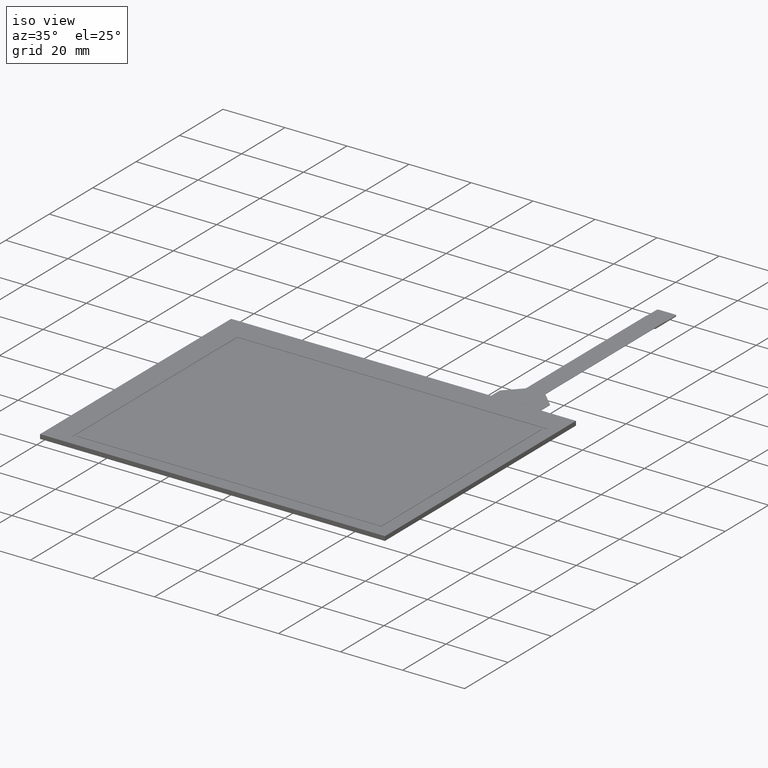
[diagram: clean part render]
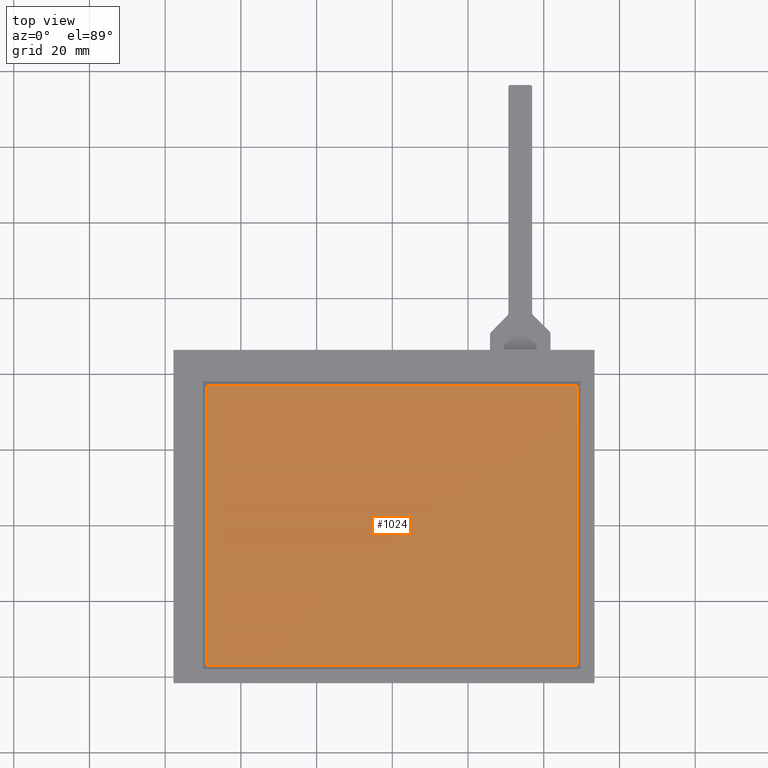
[diagram: tour spotlight — one face highlighted and labeled with its STEP entity id]
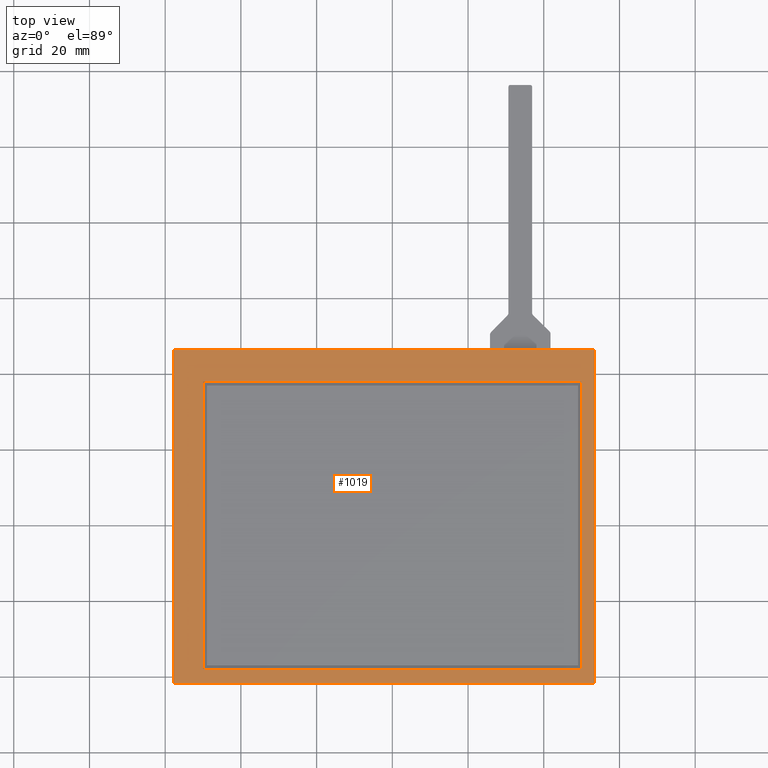
[diagram: tour spotlight — one face highlighted and labeled with its STEP entity id]
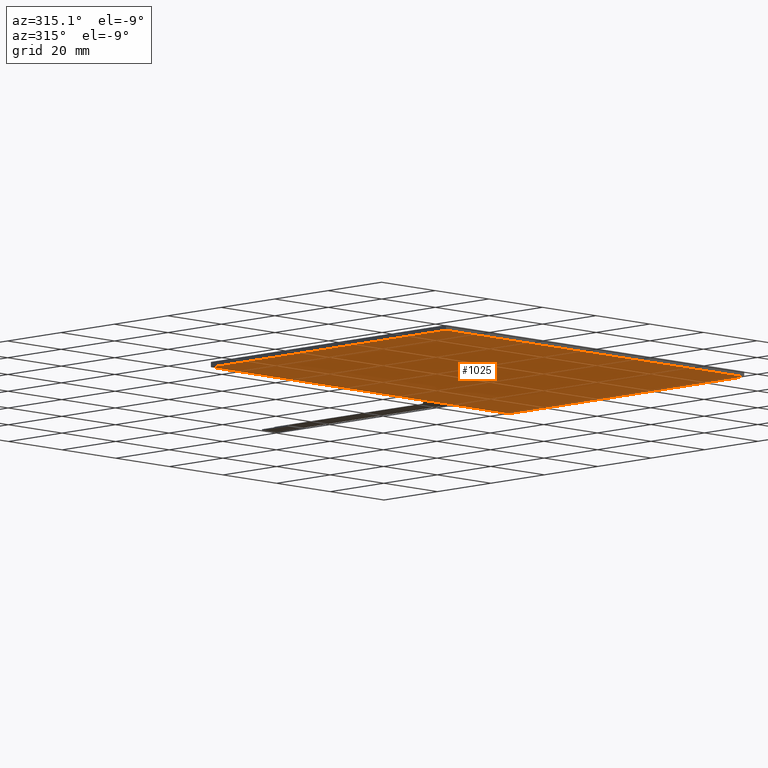
[diagram: tour spotlight — one face highlighted and labeled with its STEP entity id]
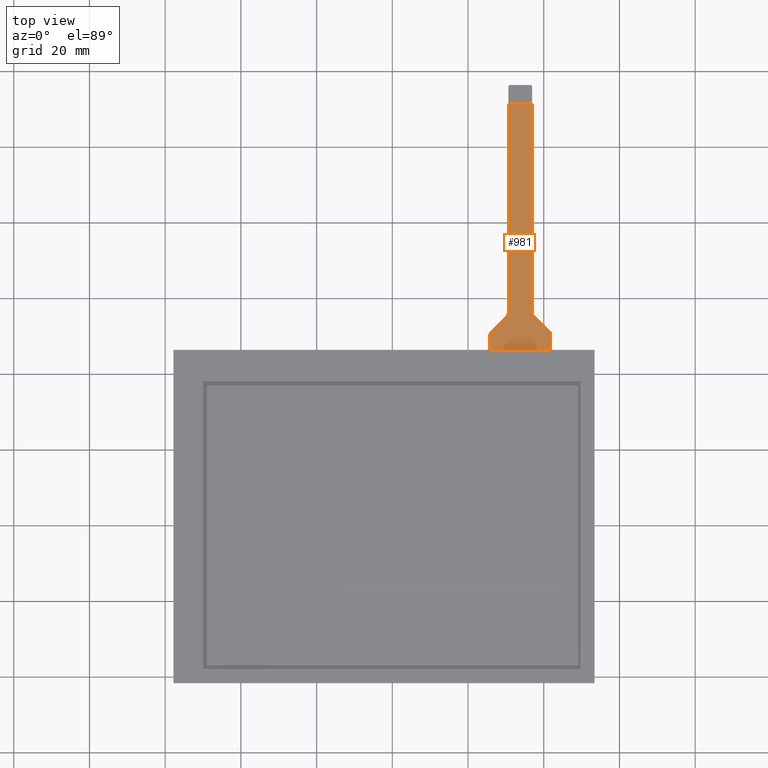
[diagram: tour spotlight — one face highlighted and labeled with its STEP entity id]
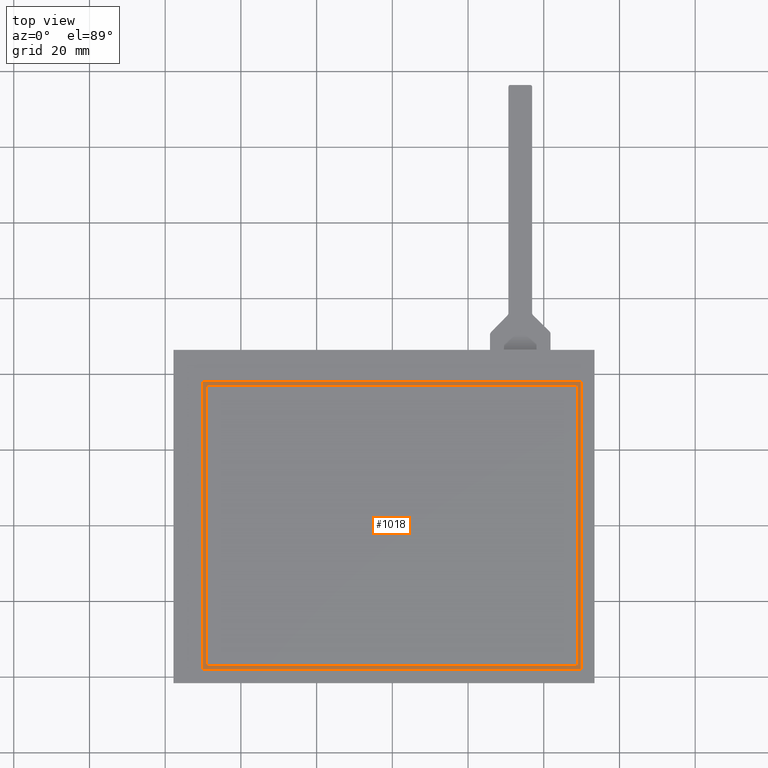
[diagram: tour spotlight — one face highlighted and labeled with its STEP entity id]
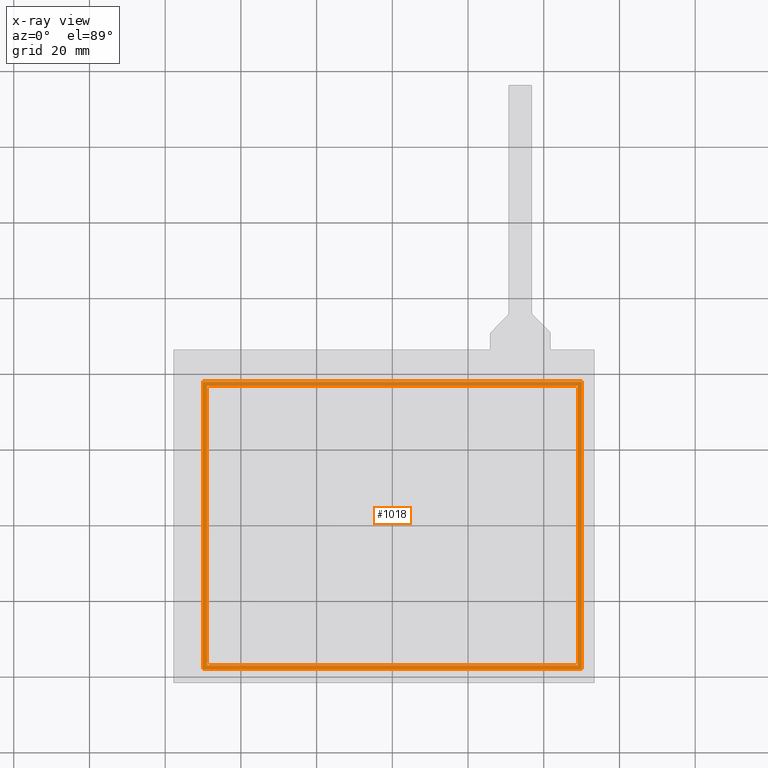
[diagram: x-ray of the same camera — body ghosted, this tour face saturated]
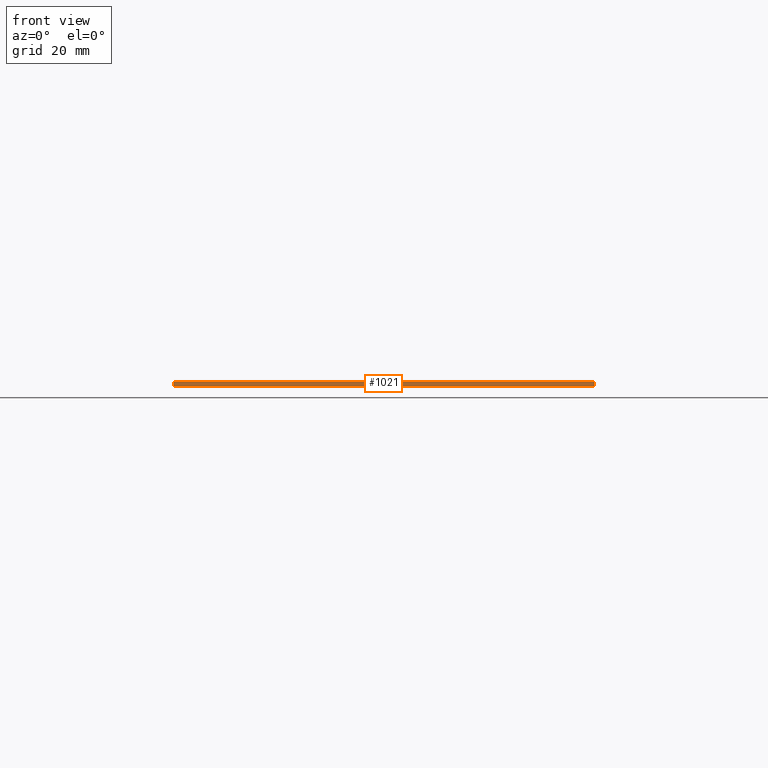
[diagram: tour spotlight — one face highlighted and labeled with its STEP entity id]
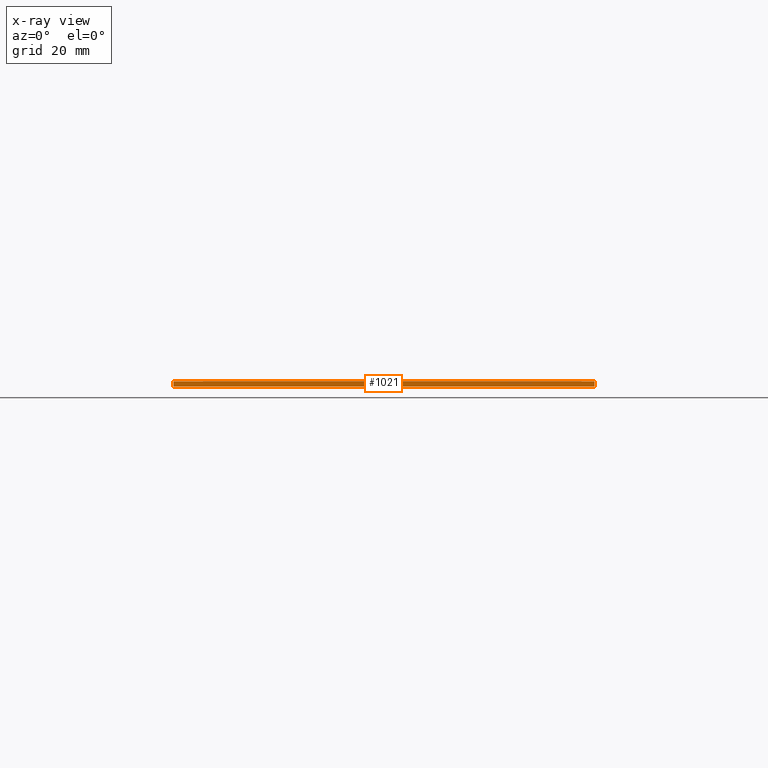
[diagram: x-ray of the same camera — body ghosted, this tour face saturated]
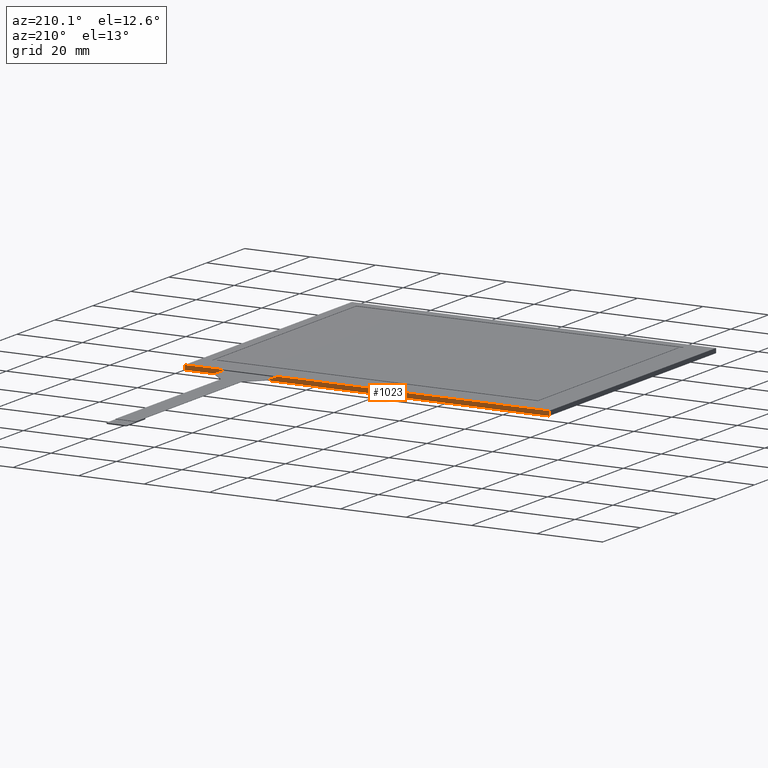
[diagram: tour spotlight — one face highlighted and labeled with its STEP entity id]
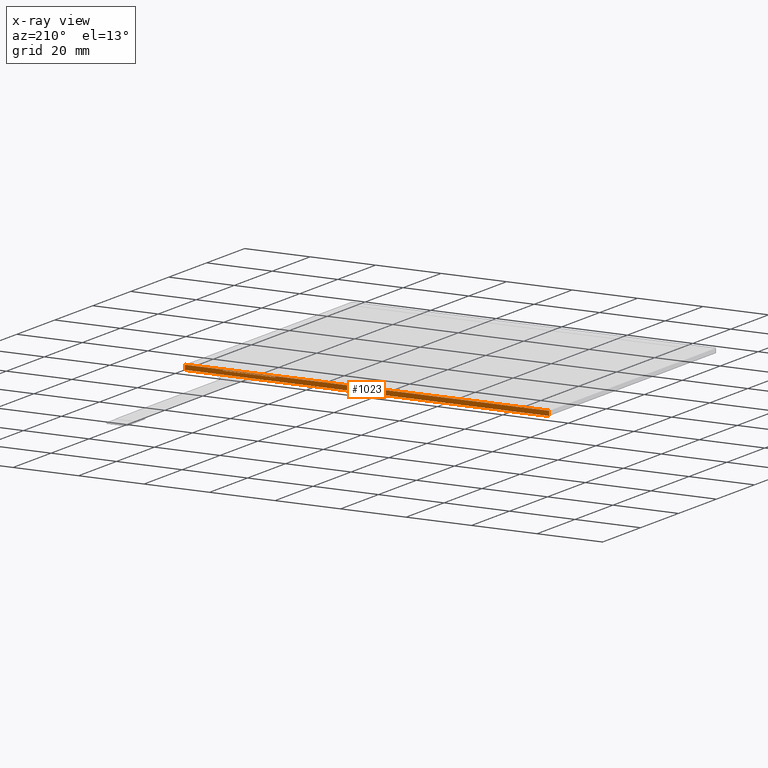
[diagram: x-ray of the same camera — body ghosted, this tour face saturated]
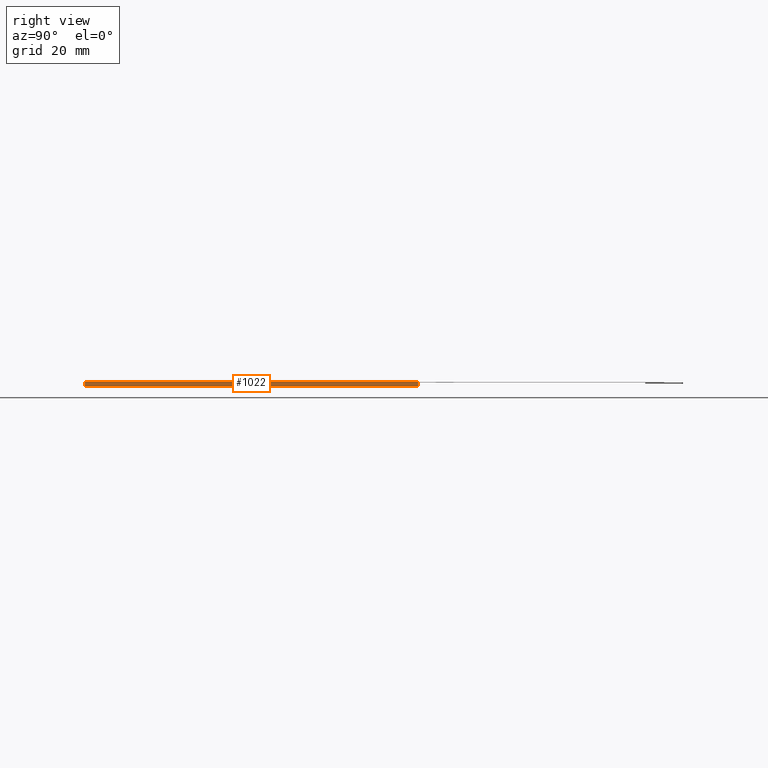
[diagram: tour spotlight — one face highlighted and labeled with its STEP entity id]
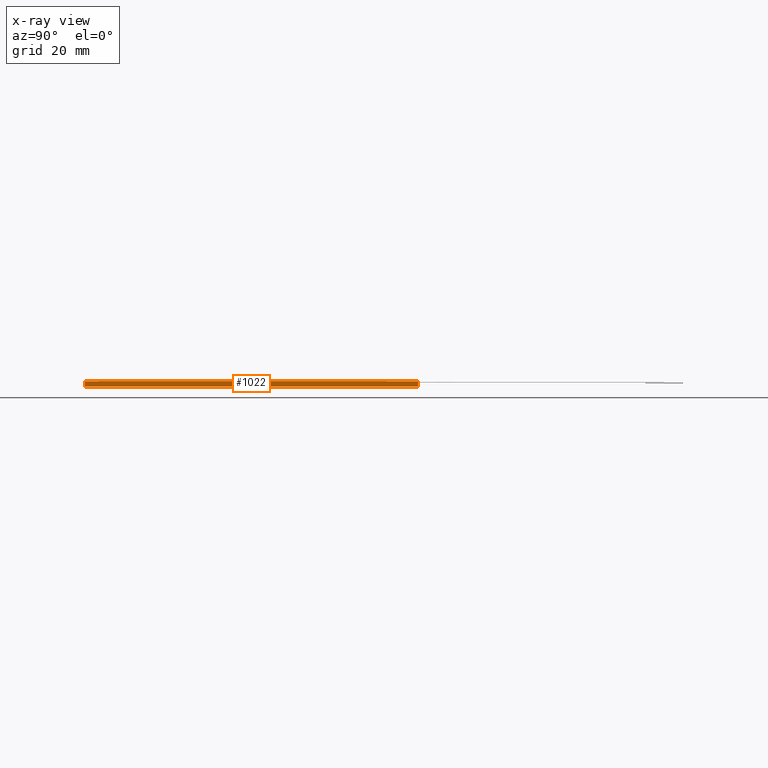
[diagram: x-ray of the same camera — body ghosted, this tour face saturated]
A machine part: a face-by-face anatomy tour. The part has 51 B-rep faces; the first image is the clean iso view, then the 8 largest visible faces are spotlighted one at a time (largest first), each with its STEP entity span.

Face 1 — top view, entity #1024. In plain terms, the highlighted planar face has unit normal (0, 0, 1).
Definition (entity closure, byte-faithful):
#92=PLANE('',#1107);
#143=FACE_OUTER_BOUND('',#197,.T.);
#197=EDGE_LOOP('',(#961,#962,#963,#964));
#289=LINE('',#1572,#415);
#293=LINE('',#1580,#419);
#296=LINE('',#1586,#422);
#299=LINE('',#1591,#425);
#415=VECTOR('',#1297,10.);
#419=VECTOR('',#1303,10.);
#422=VECTOR('',#1308,10.);
#425=VECTOR('',#1313,10.);
#531=VERTEX_POINT('',#1570);
#532=VERTEX_POINT('',#1571);
#535=VERTEX_POINT('',#1579);
#537=VERTEX_POINT('',#1585);
#657=EDGE_CURVE('',#531,#532,#289,.T.);
#661=EDGE_CURVE('',#535,#531,#293,.T.);
#664=EDGE_CURVE('',#537,#535,#296,.T.);
#667=EDGE_CURVE('',#532,#537,#299,.T.);
#961=ORIENTED_EDGE('',*,*,#657,.T.);
#962=ORIENTED_EDGE('',*,*,#667,.T.);
#963=ORIENTED_EDGE('',*,*,#664,.T.);
#964=ORIENTED_EDGE('',*,*,#661,.T.);
#1024=ADVANCED_FACE('',(#143),#92,.T.);
#1107=AXIS2_PLACEMENT_3D('',#1643,#1359,#1360);
#1297=DIRECTION('',(1.,9.06304509898087E-17,0.));
#1303=DIRECTION('',(3.60072332310862E-16,-1.,0.));
#1308=DIRECTION('',(-1.,-6.34413156928661E-16,0.));
#1313=DIRECTION('',(-4.80096443081149E-16,1.,0.));
#1359=DIRECTION('center_axis',(0.,0.,1.));
#1360=DIRECTION('ref_axis',(1.,0.,0.));
#1570=CARTESIAN_POINT('',(-49.,-37.,0.));
#1571=CARTESIAN_POINT('',(49.,-37.,0.));
#1572=CARTESIAN_POINT('',(-25.6,-37.,0.));
#1579=CARTESIAN_POINT('',(-49.,37.,0.));
#1580=CARTESIAN_POINT('',(-49.,19.7,0.));
#1585=CARTESIAN_POINT('',(49.,37.,0.));
#1586=CARTESIAN_POINT('',(23.4,37.,0.));
#1591=CARTESIAN_POINT('',(49.,-17.3,0.));
#1643=CARTESIAN_POINT('Origin',(-2.19999999999997,2.40000000000003,0.));

Face 2 — top view, entity #1019. In plain terms, the highlighted planar face has unit normal (0, 0, 1).
Definition (entity closure, byte-faithful):
#47=FACE_BOUND('',#191,.T.);
#87=PLANE('',#1102);
#138=FACE_OUTER_BOUND('',#190,.T.);
#190=EDGE_LOOP('',(#933,#934,#935,#936));
#191=EDGE_LOOP('',(#937,#938,#939,#940));
#301=LINE('',#1596,#427);
#305=LINE('',#1604,#431);
#308=LINE('',#1610,#434);
#311=LINE('',#1615,#437);
#313=LINE('',#1621,#439);
#314=LINE('',#1623,#440);
#315=LINE('',#1625,#441);
#316=LINE('',#1626,#442);
#427=VECTOR('',#1317,10.);
#431=VECTOR('',#1323,10.);
#434=VECTOR('',#1328,10.);
#437=VECTOR('',#1333,10.);
#439=VECTOR('',#1339,10.);
#440=VECTOR('',#1340,10.);
#441=VECTOR('',#1341,10.);
#442=VECTOR('',#1342,10.);
#539=VERTEX_POINT('',#1594);
#540=VERTEX_POINT('',#1595);
#543=VERTEX_POINT('',#1603);
#545=VERTEX_POINT('',#1609);
#547=VERTEX_POINT('',#1619);
#548=VERTEX_POINT('',#1620);
#549=VERTEX_POINT('',#1622);
#550=VERTEX_POINT('',#1624);
#669=EDGE_CURVE('',#539,#540,#301,.T.);
#673=EDGE_CURVE('',#543,#539,#305,.T.);
#676=EDGE_CURVE('',#545,#543,#308,.T.);
#679=EDGE_CURVE('',#540,#545,#311,.T.);
#681=EDGE_CURVE('',#547,#548,#313,.T.);
#682=EDGE_CURVE('',#548,#549,#314,.T.);
#683=EDGE_CURVE('',#549,#550,#315,.T.);
#684=EDGE_CURVE('',#550,#547,#316,.T.);
#933=ORIENTED_EDGE('',*,*,#681,.T.);
#934=ORIENTED_EDGE('',*,*,#682,.T.);
#935=ORIENTED_EDGE('',*,*,#683,.T.);
#936=ORIENTED_EDGE('',*,*,#684,.T.);
#937=ORIENTED_EDGE('',*,*,#669,.T.);
#938=ORIENTED_EDGE('',*,*,#679,.T.);
#939=ORIENTED_EDGE('',*,*,#676,.T.);
#940=ORIENTED_EDGE('',*,*,#673,.T.);
#1019=ADVANCED_FACE('',(#138,#47),#87,.T.);
#1102=AXIS2_PLACEMENT_3D('',#1618,#1337,#1338);
#1317=DIRECTION('',(-2.3373116307898E-16,1.,0.));
#1323=DIRECTION('',(-1.,-1.77635683940025E-16,0.));
#1328=DIRECTION('',(1.1686558153949E-16,-1.,0.));
#1333=DIRECTION('',(1.,0.,0.));
#1337=DIRECTION('center_axis',(0.,0.,1.));
#1338=DIRECTION('ref_axis',(1.,0.,0.));
#1339=DIRECTION('',(-1.,0.,0.));
#1340=DIRECTION('',(2.01858731750028E-16,-1.,0.));
#1341=DIRECTION('',(1.,7.98721600449753E-17,0.));
#1342=DIRECTION('',(-1.00929365875014E-16,1.,0.));
#1594=CARTESIAN_POINT('',(-50.,-38.,0.));
#1595=CARTESIAN_POINT('',(-50.,38.,0.));
#1596=CARTESIAN_POINT('',(-50.,-17.8,0.));
#1603=CARTESIAN_POINT('',(50.,-38.,0.));
#1604=CARTESIAN_POINT('',(23.9,-38.,0.));
#1609=CARTESIAN_POINT('',(50.,38.,0.));
#1610=CARTESIAN_POINT('',(50.,20.2,0.));
#1615=CARTESIAN_POINT('',(-26.1,38.,0.));
#1618=CARTESIAN_POINT('Origin',(-2.19999999999997,2.40000000000003,0.));
#1619=CARTESIAN_POINT('',(53.4,46.4,0.));
#1620=CARTESIAN_POINT('',(-57.8,46.4,0.));
#1621=CARTESIAN_POINT('',(53.4,46.4,0.));
#1622=CARTESIAN_POINT('',(-57.8,-41.6,0.));
#1623=CARTESIAN_POINT('',(-57.8,46.4,0.));
#1624=CARTESIAN_POINT('',(53.4,-41.6,0.));
#1625=CARTESIAN_POINT('',(-57.8,-41.6,0.));
#1626=CARTESIAN_POINT('',(53.4,-41.6,0.));

Face 3 — auxiliary view, entity #1025. In plain terms, the highlighted planar face has unit normal (0, 0, -1).
Definition (entity closure, byte-faithful):
#93=PLANE('',#1108);
#144=FACE_OUTER_BOUND('',#198,.T.);
#198=EDGE_LOOP('',(#965,#966,#967,#968));
#318=LINE('',#1631,#444);
#320=LINE('',#1635,#446);
#322=LINE('',#1639,#448);
#324=LINE('',#1642,#450);
#444=VECTOR('',#1346,10.);
#446=VECTOR('',#1350,10.);
#448=VECTOR('',#1354,10.);
#450=VECTOR('',#1358,10.);
#551=VERTEX_POINT('',#1628);
#552=VERTEX_POINT('',#1630);
#553=VERTEX_POINT('',#1634);
#554=VERTEX_POINT('',#1638);
#686=EDGE_CURVE('',#552,#551,#318,.T.);
#688=EDGE_CURVE('',#553,#552,#320,.T.);
#690=EDGE_CURVE('',#554,#553,#322,.T.);
#692=EDGE_CURVE('',#551,#554,#324,.T.);
#965=ORIENTED_EDGE('',*,*,#692,.T.);
#966=ORIENTED_EDGE('',*,*,#690,.T.);
#967=ORIENTED_EDGE('',*,*,#688,.T.);
#968=ORIENTED_EDGE('',*,*,#686,.T.);
#1025=ADVANCED_FACE('',(#144),#93,.T.);
#1108=AXIS2_PLACEMENT_3D('',#1644,#1361,#1362);
#1346=DIRECTION('',(-2.01858731750028E-16,1.,0.));
#1350=DIRECTION('',(-1.,-7.98721600449753E-17,0.));
#1354=DIRECTION('',(1.00929365875014E-16,-1.,0.));
#1358=DIRECTION('',(1.,0.,0.));
#1361=DIRECTION('center_axis',(0.,0.,-1.));
#1362=DIRECTION('ref_axis',(-1.,0.,0.));
#1628=CARTESIAN_POINT('',(-57.8,46.4,-1.4));
#1630=CARTESIAN_POINT('',(-57.8,-41.6,-1.4));
#1631=CARTESIAN_POINT('',(-57.8,46.4,-1.4));
#1634=CARTESIAN_POINT('',(53.4,-41.6,-1.4));
#1635=CARTESIAN_POINT('',(-57.8,-41.6,-1.4));
#1638=CARTESIAN_POINT('',(53.4,46.4,-1.4));
#1639=CARTESIAN_POINT('',(53.4,-41.6,-1.4));
#1642=CARTESIAN_POINT('',(53.4,46.4,-1.4));
#1644=CARTESIAN_POINT('Origin',(-2.19999999999997,2.40000000000004,-1.4));

Face 4 — top view, entity #981. In plain terms, the highlighted planar face has unit normal (0, 0, 1).
Definition (entity closure, byte-faithful):
#52=PLANE('',#1058);
#100=FACE_OUTER_BOUND('',#151,.T.);
#151=EDGE_LOOP('',(#735,#736,#737,#738,#739,#740,#741,#742,#743,#744,#745,
#746));
#226=LINE('',#1434,#352);
#229=LINE('',#1440,#355);
#230=LINE('',#1442,#356);
#231=LINE('',#1444,#357);
#232=LINE('',#1448,#358);
#233=LINE('',#1452,#359);
#234=LINE('',#1454,#360);
#235=LINE('',#1456,#361);
#352=VECTOR('',#1162,10.);
#355=VECTOR('',#1167,10.);
#356=VECTOR('',#1168,10.);
#357=VECTOR('',#1169,10.);
#358=VECTOR('',#1172,10.);
#359=VECTOR('',#1175,10.);
#360=VECTOR('',#1176,10.);
#361=VECTOR('',#1177,10.);
#456=CIRCLE('',#1056,1.);
#457=CIRCLE('',#1059,1.);
#458=CIRCLE('',#1060,1.);
#459=CIRCLE('',#1061,1.);
#491=VERTEX_POINT('',#1427);
#492=VERTEX_POINT('',#1429);
#493=VERTEX_POINT('',#1433);
#495=VERTEX_POINT('',#1439);
#496=VERTEX_POINT('',#1441);
#497=VERTEX_POINT('',#1443);
#498=VERTEX_POINT('',#1445);
#499=VERTEX_POINT('',#1447);
#500=VERTEX_POINT('',#1449);
#501=VERTEX_POINT('',#1451);
#502=VERTEX_POINT('',#1453);
#503=VERTEX_POINT('',#1455);
#586=EDGE_CURVE('',#491,#492,#456,.T.);
#588=EDGE_CURVE('',#493,#492,#226,.T.);
#591=EDGE_CURVE('',#491,#495,#229,.T.);
#592=EDGE_CURVE('',#496,#495,#230,.T.);
#593=EDGE_CURVE('',#496,#497,#231,.T.);
#594=EDGE_CURVE('',#498,#497,#457,.T.);
#595=EDGE_CURVE('',#498,#499,#232,.T.);
#596=EDGE_CURVE('',#500,#499,#458,.T.);
#597=EDGE_CURVE('',#500,#501,#233,.T.);
#598=EDGE_CURVE('',#501,#502,#234,.T.);
#599=EDGE_CURVE('',#502,#503,#235,.T.);
#600=EDGE_CURVE('',#493,#503,#459,.T.);
#735=ORIENTED_EDGE('',*,*,#586,.F.);
#736=ORIENTED_EDGE('',*,*,#591,.T.);
#737=ORIENTED_EDGE('',*,*,#592,.F.);
#738=ORIENTED_EDGE('',*,*,#593,.T.);
#739=ORIENTED_EDGE('',*,*,#594,.F.);
#740=ORIENTED_EDGE('',*,*,#595,.T.);
#741=ORIENTED_EDGE('',*,*,#596,.F.);
#742=ORIENTED_EDGE('',*,*,#597,.T.);
#743=ORIENTED_EDGE('',*,*,#598,.T.);
#744=ORIENTED_EDGE('',*,*,#599,.T.);
#745=ORIENTED_EDGE('',*,*,#600,.F.);
#746=ORIENTED_EDGE('',*,*,#588,.T.);
#981=ADVANCED_FACE('',(#100),#52,.T.);
#1056=AXIS2_PLACEMENT_3D('',#1430,#1157,#1158);
#1058=AXIS2_PLACEMENT_3D('',#1438,#1165,#1166);
#1059=AXIS2_PLACEMENT_3D('',#1446,#1170,#1171);
#1060=AXIS2_PLACEMENT_3D('',#1450,#1173,#1174);
#1061=AXIS2_PLACEMENT_3D('',#1457,#1178,#1179);
#1157=DIRECTION('center_axis',(0.,0.,-1.));
#1158=DIRECTION('ref_axis',(-0.926470977387795,0.376366215351622,0.));
#1162=DIRECTION('',(-0.697384750785128,-0.716696943883791,0.));
#1165=DIRECTION('center_axis',(0.,0.,1.));
#1166=DIRECTION('ref_axis',(1.,0.,0.));
#1167=DIRECTION('',(-1.01159273314365E-15,-1.,0.));
#1168=DIRECTION('',(-1.,0.,0.));
#1169=DIRECTION('',(0.,1.,0.));
#1170=DIRECTION('center_axis',(0.,0.,-1.));
#1171=DIRECTION('ref_axis',(0.921245013768089,0.388982807598784,0.));
#1172=DIRECTION('',(-0.71669694388379,0.697384750785128,0.));
#1173=DIRECTION('center_axis',(0.,0.,1.));
#1174=DIRECTION('ref_axis',(-0.921245013768087,-0.388982807598791,0.));
#1175=DIRECTION('',(7.32820478300433E-17,1.,0.));
#1176=DIRECTION('',(-1.,0.,0.));
#1177=DIRECTION('',(3.66410239150217E-16,-1.,0.));
#1178=DIRECTION('center_axis',(0.,0.,1.));
#1179=DIRECTION('ref_axis',(0.926470977387795,-0.376366215351622,0.));
#1427=CARTESIAN_POINT('',(25.795,50.3837636207313,-0.2));
#1429=CARTESIAN_POINT('',(26.0783030561162,51.0811483715164,-0.2));
#1430=CARTESIAN_POINT('Origin',(26.795,50.3837636207313,-0.2));
#1433=CARTESIAN_POINT('',(30.3866969438838,55.5088516284837,-0.2));
#1434=CARTESIAN_POINT('',(30.67,55.8,-0.2));
#1438=CARTESIAN_POINT('Origin',(33.795,81.4,-0.2));
#1439=CARTESIAN_POINT('',(25.795,46.4,-0.2));
#1440=CARTESIAN_POINT('',(25.795,50.79,-0.2));
#1441=CARTESIAN_POINT('',(41.795,46.4,-0.2));
#1442=CARTESIAN_POINT('',(-12.0025,46.4,-0.2));
#1443=CARTESIAN_POINT('',(41.795,50.6341262776576,-0.2));
#1444=CARTESIAN_POINT('',(41.795,46.4,-0.2));
#1445=CARTESIAN_POINT('',(41.4923847507851,51.3508232215414,-0.2));
#1446=CARTESIAN_POINT('Origin',(40.795,50.6341262776576,-0.2));
#1447=CARTESIAN_POINT('',(37.2226152492149,55.5055390539077,-0.2));
#1448=CARTESIAN_POINT('',(41.795,51.0563622754491,-0.2));
#1449=CARTESIAN_POINT('',(36.92,56.2222359977915,-0.2));
#1450=CARTESIAN_POINT('Origin',(37.92,56.2222359977915,-0.2));
#1451=CARTESIAN_POINT('',(36.92,111.4,-0.2));
#1452=CARTESIAN_POINT('',(36.92,55.8,-0.2));
#1453=CARTESIAN_POINT('',(30.67,111.4,-0.2));
#1454=CARTESIAN_POINT('',(35.3575,111.4,-0.2));
#1455=CARTESIAN_POINT('',(30.67,56.2062363792688,-0.2));
#1456=CARTESIAN_POINT('',(30.67,116.4,-0.2));
#1457=CARTESIAN_POINT('Origin',(29.67,56.2062363792688,-0.2));

Face 5 — top view, entity #1018. An x-ray twin of the same camera follows (body ghosted, this face saturated) — the face is partly hidden behind the body. In plain terms, the highlighted planar face has unit normal (0, 0, -1).
Definition (entity closure, byte-faithful):
#46=FACE_BOUND('',#189,.T.);
#86=PLANE('',#1101);
#137=FACE_OUTER_BOUND('',#188,.T.);
#188=EDGE_LOOP('',(#925,#926,#927,#928));
#189=EDGE_LOOP('',(#929,#930,#931,#932));
#291=LINE('',#1576,#417);
#295=LINE('',#1583,#421);
#298=LINE('',#1589,#424);
#300=LINE('',#1592,#426);
#303=LINE('',#1600,#429);
#307=LINE('',#1607,#433);
#310=LINE('',#1613,#436);
#312=LINE('',#1616,#438);
#417=VECTOR('',#1299,10.);
#421=VECTOR('',#1305,10.);
#424=VECTOR('',#1310,10.);
#426=VECTOR('',#1314,10.);
#429=VECTOR('',#1319,10.);
#433=VECTOR('',#1325,10.);
#436=VECTOR('',#1330,10.);
#438=VECTOR('',#1334,10.);
#533=VERTEX_POINT('',#1573);
#534=VERTEX_POINT('',#1575);
#536=VERTEX_POINT('',#1581);
#538=VERTEX_POINT('',#1587);
#541=VERTEX_POINT('',#1597);
#542=VERTEX_POINT('',#1599);
#544=VERTEX_POINT('',#1605);
#546=VERTEX_POINT('',#1611);
#659=EDGE_CURVE('',#533,#534,#291,.T.);
#663=EDGE_CURVE('',#536,#533,#295,.T.);
#666=EDGE_CURVE('',#538,#536,#298,.T.);
#668=EDGE_CURVE('',#534,#538,#300,.T.);
#671=EDGE_CURVE('',#541,#542,#303,.T.);
#675=EDGE_CURVE('',#544,#541,#307,.T.);
#678=EDGE_CURVE('',#546,#544,#310,.T.);
#680=EDGE_CURVE('',#542,#546,#312,.T.);
#925=ORIENTED_EDGE('',*,*,#680,.F.);
#926=ORIENTED_EDGE('',*,*,#671,.F.);
#927=ORIENTED_EDGE('',*,*,#675,.F.);
#928=ORIENTED_EDGE('',*,*,#678,.F.);
#929=ORIENTED_EDGE('',*,*,#668,.F.);
#930=ORIENTED_EDGE('',*,*,#659,.F.);
#931=ORIENTED_EDGE('',*,*,#663,.F.);
#932=ORIENTED_EDGE('',*,*,#666,.F.);
#1018=ADVANCED_FACE('',(#137,#46),#86,.F.);
#1101=AXIS2_PLACEMENT_3D('',#1617,#1335,#1336);
#1299=DIRECTION('',(1.,9.06304509898087E-17,0.));
#1305=DIRECTION('',(3.60072332310862E-16,-1.,0.));
#1310=DIRECTION('',(-1.,-6.34413156928661E-16,0.));
#1314=DIRECTION('',(-4.80096443081149E-16,1.,0.));
#1319=DIRECTION('',(-2.3373116307898E-16,1.,0.));
#1325=DIRECTION('',(-1.,-1.77635683940025E-16,0.));
#1330=DIRECTION('',(1.1686558153949E-16,-1.,0.));
#1334=DIRECTION('',(1.,0.,0.));
#1335=DIRECTION('center_axis',(0.,0.,-1.));
#1336=DIRECTION('ref_axis',(-1.,0.,0.));
#1573=CARTESIAN_POINT('',(-49.,-37.,-0.1));
#1575=CARTESIAN_POINT('',(49.,-37.,-0.1));
#1576=CARTESIAN_POINT('',(49.,-37.,-0.1));
#1581=CARTESIAN_POINT('',(-49.,37.,-0.1));
#1583=CARTESIAN_POINT('',(-49.,-37.,-0.1));
#1587=CARTESIAN_POINT('',(49.,37.,-0.1));
#1589=CARTESIAN_POINT('',(-49.,37.,-0.1));
#1592=CARTESIAN_POINT('',(49.,37.,-0.1));
#1597=CARTESIAN_POINT('',(-50.,-38.,-0.1));
#1599=CARTESIAN_POINT('',(-50.,38.,-0.1));
#1600=CARTESIAN_POINT('',(-50.,38.,-0.1));
#1605=CARTESIAN_POINT('',(50.,-38.,-0.1));
#1607=CARTESIAN_POINT('',(-50.,-38.,-0.1));
#1611=CARTESIAN_POINT('',(50.,38.,-0.1));
#1613=CARTESIAN_POINT('',(50.,-38.,-0.1));
#1616=CARTESIAN_POINT('',(50.,38.,-0.1));
#1617=CARTESIAN_POINT('Origin',(2.66453525910038E-14,3.99680288865056E-14,
-0.1));

Face 6 — front view, entity #1021. An x-ray twin of the same camera follows (body ghosted, this face saturated) — the face is partly hidden behind the body. In plain terms, the highlighted planar face has unit normal (0, -1, 0).
Definition (entity closure, byte-faithful):
#89=PLANE('',#1104);
#140=FACE_OUTER_BOUND('',#193,.T.);
#193=EDGE_LOOP('',(#945,#946,#947,#948));
#315=LINE('',#1625,#441);
#319=LINE('',#1632,#445);
#320=LINE('',#1635,#446);
#321=LINE('',#1636,#447);
#441=VECTOR('',#1341,10.);
#445=VECTOR('',#1347,10.);
#446=VECTOR('',#1350,10.);
#447=VECTOR('',#1351,10.);
#549=VERTEX_POINT('',#1622);
#550=VERTEX_POINT('',#1624);
#552=VERTEX_POINT('',#1630);
#553=VERTEX_POINT('',#1634);
#683=EDGE_CURVE('',#549,#550,#315,.T.);
#687=EDGE_CURVE('',#549,#552,#319,.T.);
#688=EDGE_CURVE('',#553,#552,#320,.T.);
#689=EDGE_CURVE('',#550,#553,#321,.T.);
#945=ORIENTED_EDGE('',*,*,#683,.F.);
#946=ORIENTED_EDGE('',*,*,#687,.T.);
#947=ORIENTED_EDGE('',*,*,#688,.F.);
#948=ORIENTED_EDGE('',*,*,#689,.F.);
#1021=ADVANCED_FACE('',(#140),#89,.T.);
#1104=AXIS2_PLACEMENT_3D('',#1633,#1348,#1349);
#1341=DIRECTION('',(1.,7.98721600449753E-17,0.));
#1347=DIRECTION('',(0.,0.,-1.));
#1348=DIRECTION('center_axis',(7.98721600449753E-17,-1.,0.));
#1349=DIRECTION('ref_axis',(-1.,-7.98721600449753E-17,0.));
#1350=DIRECTION('',(-1.,-7.98721600449753E-17,0.));
#1351=DIRECTION('',(0.,0.,-1.));
#1622=CARTESIAN_POINT('',(-57.8,-41.6,0.));
#1624=CARTESIAN_POINT('',(53.4,-41.6,0.));
#1625=CARTESIAN_POINT('',(-57.8,-41.6,0.));
#1630=CARTESIAN_POINT('',(-57.8,-41.6,-1.4));
#1632=CARTESIAN_POINT('',(-57.8,-41.6,0.));
#1633=CARTESIAN_POINT('Origin',(53.4,-41.6,0.));
#1634=CARTESIAN_POINT('',(53.4,-41.6,-1.4));
#1635=CARTESIAN_POINT('',(-57.8,-41.6,-1.4));
#1636=CARTESIAN_POINT('',(53.4,-41.6,0.));

Face 7 — auxiliary view, entity #1023. An x-ray twin of the same camera follows (body ghosted, this face saturated) — the face is partly hidden behind the body. In plain terms, the highlighted planar face has unit normal (0, 1, 0).
Definition (entity closure, byte-faithful):
#48=FACE_BOUND('',#196,.T.);
#91=PLANE('',#1106);
#142=FACE_OUTER_BOUND('',#195,.T.);
#195=EDGE_LOOP('',(#953,#954,#955,#956));
#196=EDGE_LOOP('',(#957,#958,#959,#960));
#230=LINE('',#1442,#356);
#249=LINE('',#1490,#375);
#287=LINE('',#1565,#413);
#288=LINE('',#1568,#414);
#313=LINE('',#1621,#439);
#317=LINE('',#1629,#443);
#323=LINE('',#1640,#449);
#324=LINE('',#1642,#450);
#356=VECTOR('',#1168,10.);
#375=VECTOR('',#1211,10.);
#413=VECTOR('',#1289,10.);
#414=VECTOR('',#1294,10.);
#439=VECTOR('',#1339,10.);
#443=VECTOR('',#1345,10.);
#449=VECTOR('',#1355,10.);
#450=VECTOR('',#1358,10.);
#495=VERTEX_POINT('',#1439);
#496=VERTEX_POINT('',#1441);
#512=VERTEX_POINT('',#1487);
#513=VERTEX_POINT('',#1489);
#547=VERTEX_POINT('',#1619);
#548=VERTEX_POINT('',#1620);
#551=VERTEX_POINT('',#1628);
#554=VERTEX_POINT('',#1638);
#592=EDGE_CURVE('',#496,#495,#230,.T.);
#617=EDGE_CURVE('',#513,#512,#249,.T.);
#655=EDGE_CURVE('',#512,#496,#287,.T.);
#656=EDGE_CURVE('',#495,#513,#288,.T.);
#681=EDGE_CURVE('',#547,#548,#313,.T.);
#685=EDGE_CURVE('',#548,#551,#317,.T.);
#691=EDGE_CURVE('',#547,#554,#323,.T.);
#692=EDGE_CURVE('',#551,#554,#324,.T.);
#953=ORIENTED_EDGE('',*,*,#681,.F.);
#954=ORIENTED_EDGE('',*,*,#691,.T.);
#955=ORIENTED_EDGE('',*,*,#692,.F.);
#956=ORIENTED_EDGE('',*,*,#685,.F.);
#957=ORIENTED_EDGE('',*,*,#656,.T.);
#958=ORIENTED_EDGE('',*,*,#617,.T.);
#959=ORIENTED_EDGE('',*,*,#655,.T.);
#960=ORIENTED_EDGE('',*,*,#592,.T.);
#1023=ADVANCED_FACE('',(#142,#48),#91,.T.);
#1106=AXIS2_PLACEMENT_3D('',#1641,#1356,#1357);
#1168=DIRECTION('',(-1.,0.,0.));
#1211=DIRECTION('',(1.,0.,0.));
#1289=DIRECTION('',(0.,0.,1.));
#1294=DIRECTION('',(0.,0.,-1.));
#1339=DIRECTION('',(-1.,0.,0.));
#1345=DIRECTION('',(0.,0.,-1.));
#1355=DIRECTION('',(0.,0.,-1.));
#1356=DIRECTION('center_axis',(0.,1.,0.));
#1357=DIRECTION('ref_axis',(1.,0.,0.));
#1358=DIRECTION('',(1.,0.,0.));
#1439=CARTESIAN_POINT('',(25.795,46.4,-0.2));
#1441=CARTESIAN_POINT('',(41.795,46.4,-0.2));
#1442=CARTESIAN_POINT('',(-12.0025,46.4,-0.2));
#1487=CARTESIAN_POINT('',(41.795,46.4,-0.3));
#1489=CARTESIAN_POINT('',(25.795,46.4,-0.3));
#1490=CARTESIAN_POINT('',(-12.0025,46.4,-0.3));
#1565=CARTESIAN_POINT('',(41.795,46.4,-0.1));
#1568=CARTESIAN_POINT('',(25.795,46.4,-0.1));
#1619=CARTESIAN_POINT('',(53.4,46.4,0.));
#1620=CARTESIAN_POINT('',(-57.8,46.4,0.));
#1621=CARTESIAN_POINT('',(53.4,46.4,0.));
#1628=CARTESIAN_POINT('',(-57.8,46.4,-1.4));
#1629=CARTESIAN_POINT('',(-57.8,46.4,0.));
#1638=CARTESIAN_POINT('',(53.4,46.4,-1.4));
#1640=CARTESIAN_POINT('',(53.4,46.4,0.));
#1641=CARTESIAN_POINT('Origin',(-57.8,46.4,0.));
#1642=CARTESIAN_POINT('',(53.4,46.4,-1.4));

Face 8 — right view, entity #1022. An x-ray twin of the same camera follows (body ghosted, this face saturated) — the face is partly hidden behind the body. In plain terms, the highlighted planar face has unit normal (1, 0, 0).
Definition (entity closure, byte-faithful):
#90=PLANE('',#1105);
#141=FACE_OUTER_BOUND('',#194,.T.);
#194=EDGE_LOOP('',(#949,#950,#951,#952));
#316=LINE('',#1626,#442);
#321=LINE('',#1636,#447);
#322=LINE('',#1639,#448);
#323=LINE('',#1640,#449);
#442=VECTOR('',#1342,10.);
#447=VECTOR('',#1351,10.);
#448=VECTOR('',#1354,10.);
#449=VECTOR('',#1355,10.);
#547=VERTEX_POINT('',#1619);
#550=VERTEX_POINT('',#1624);
#553=VERTEX_POINT('',#1634);
#554=VERTEX_POINT('',#1638);
#684=EDGE_CURVE('',#550,#547,#316,.T.);
#689=EDGE_CURVE('',#550,#553,#321,.T.);
#690=EDGE_CURVE('',#554,#553,#322,.T.);
#691=EDGE_CURVE('',#547,#554,#323,.T.);
#949=ORIENTED_EDGE('',*,*,#684,.F.);
#950=ORIENTED_EDGE('',*,*,#689,.T.);
#951=ORIENTED_EDGE('',*,*,#690,.F.);
#952=ORIENTED_EDGE('',*,*,#691,.F.);
#1022=ADVANCED_FACE('',(#141),#90,.T.);
#1105=AXIS2_PLACEMENT_3D('',#1637,#1352,#1353);
#1342=DIRECTION('',(-1.00929365875014E-16,1.,0.));
#1351=DIRECTION('',(0.,0.,-1.));
#1352=DIRECTION('center_axis',(1.,1.00929365875014E-16,0.));
#1353=DIRECTION('ref_axis',(1.00929365875014E-16,-1.,0.));
#1354=DIRECTION('',(1.00929365875014E-16,-1.,0.));
#1355=DIRECTION('',(0.,0.,-1.));
#1619=CARTESIAN_POINT('',(53.4,46.4,0.));
#1624=CARTESIAN_POINT('',(53.4,-41.6,0.));
#1626=CARTESIAN_POINT('',(53.4,-41.6,0.));
#1634=CARTESIAN_POINT('',(53.4,-41.6,-1.4));
#1636=CARTESIAN_POINT('',(53.4,-41.6,0.));
#1637=CARTESIAN_POINT('Origin',(53.4,46.4,0.));
#1638=CARTESIAN_POINT('',(53.4,46.4,-1.4));
#1639=CARTESIAN_POINT('',(53.4,-41.6,-1.4));
#1640=CARTESIAN_POINT('',(53.4,46.4,0.));